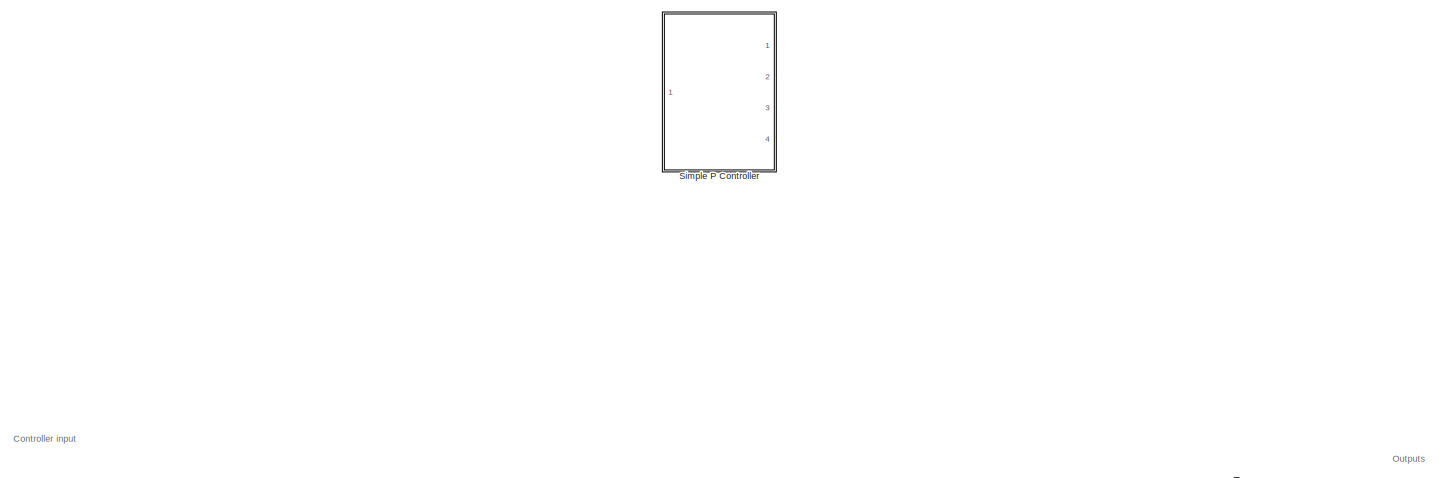
[diagram: root canvas - part 1/4, full width, top band]
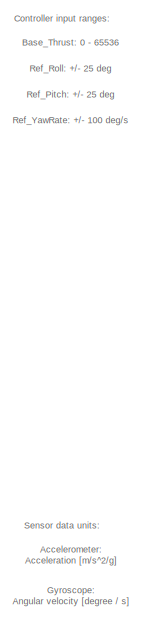
[diagram: root canvas - part 2/4, middle left region]
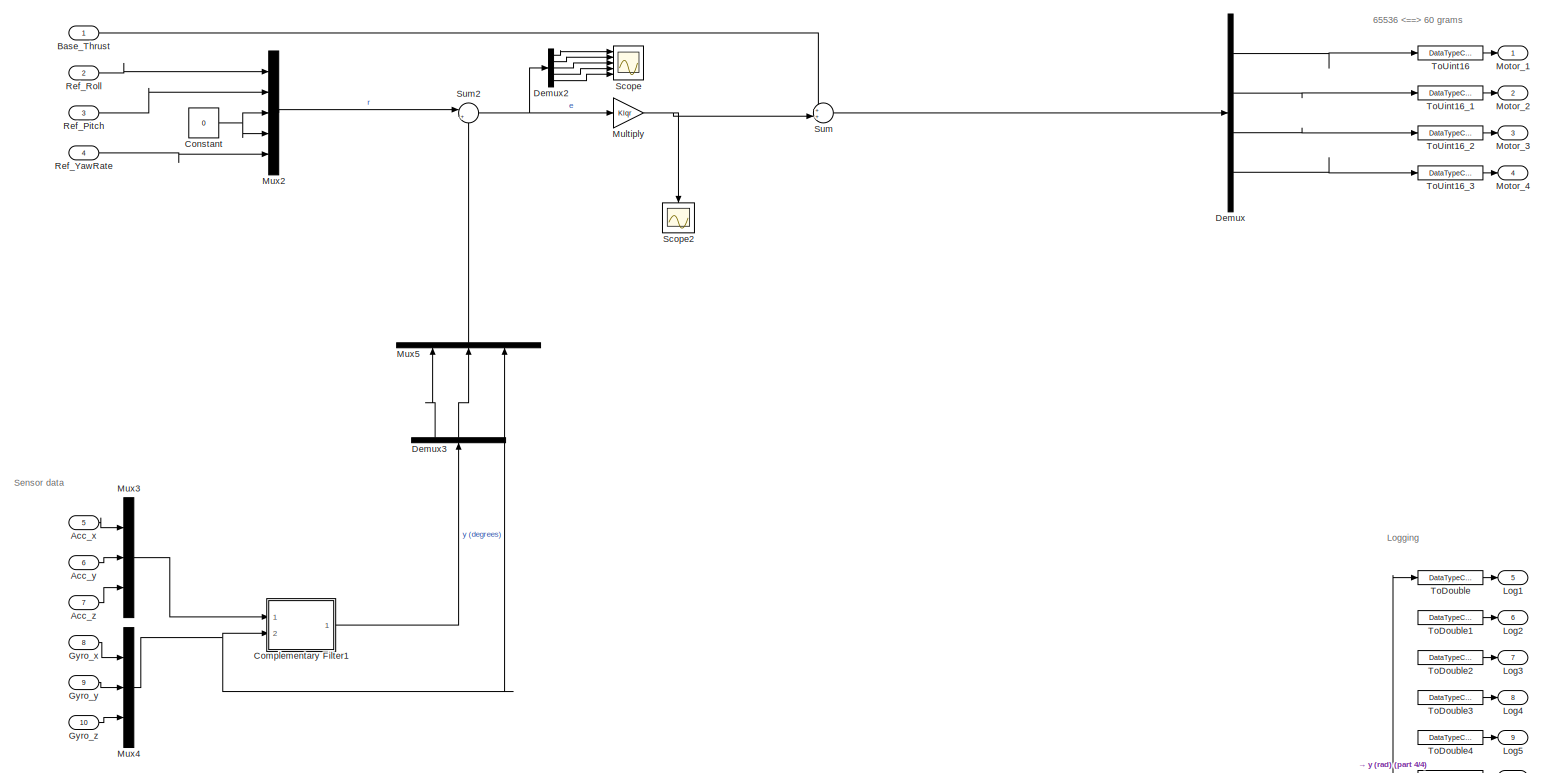
[diagram: root canvas - part 3/4, full width, middle band]
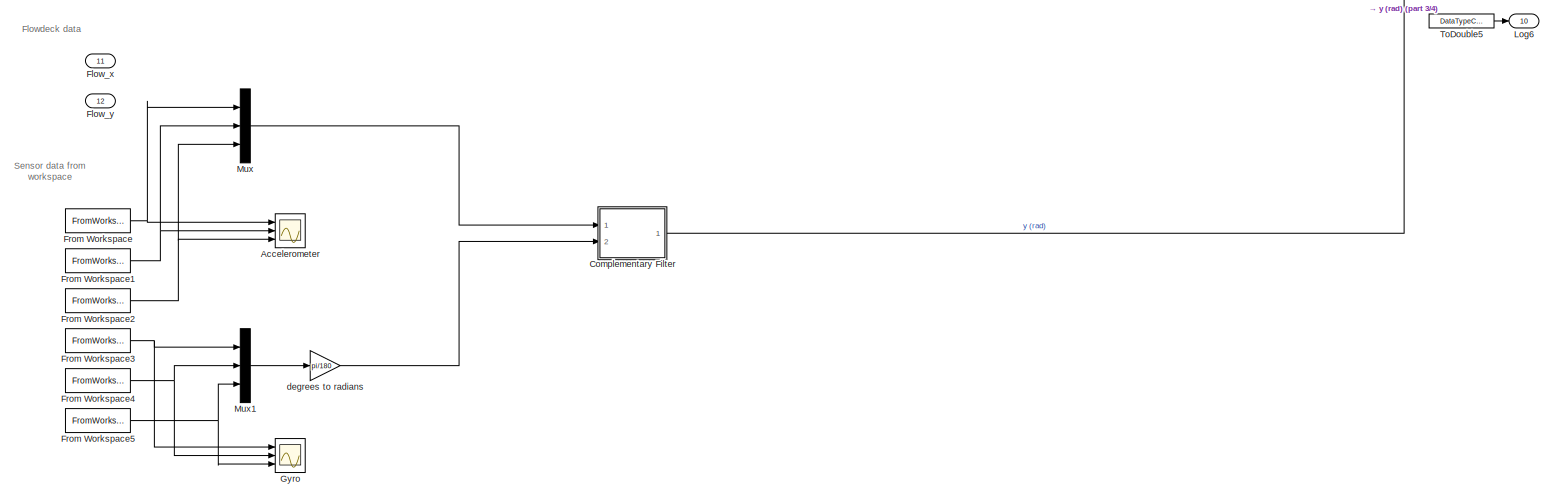
[diagram: root canvas - part 4/4, full width, bottom band]
MODEL slx_185df09b1d9f
KIND model
CONFIG AbsTol = auto
CONFIG EnableMultiTasking = off
CONFIG FixedStep = 0.01
CONFIG MaxStep = auto
CONFIG MinStep = auto
CONFIG RelTol = 1e-3
CONFIG SampleTimeConstraint = Unconstrained
CONFIG Solver = FixedStepDiscrete
CONFIG SolverName = FixedStepDiscrete
CONFIG StartTime = 0.0
CONFIG StopTime = 25
BLOCK [Inport] Acc_x
  IconDisplay = Port number
  OutDataTypeStr = double
  Port = 5
  PortDimensions = 1
  SignalType = real
  VarSizeSig = No
BLOCK [Inport] Acc_y
  IconDisplay = Port number
  OutDataTypeStr = double
  Port = 6
  PortDimensions = 1
  SignalType = real
  VarSizeSig = No
BLOCK [Inport] Acc_z
  IconDisplay = Port number
  OutDataTypeStr = double
  Port = 7
  PortDimensions = 1
  SignalType = real
  VarSizeSig = No
BLOCK [Scope] Accelerometer
  Floating = off
  NumInputPorts = 3
  Ports = [3]
  ScopeSpecificationString = Simulink.scopes.TimeScopeBlockCfg('CurrentConfiguration', extmgr.ConfigurationSet(extmgr.Configuration('Core','General UI',true),extmgr.Configuration('Core','Source UI',true),extmgr.Configuration('Sources','WiredSimulink',true),extmgr.Configuration('Visuals','Time Domain',true,'SerializedDisplays',{struct('MinYLimReal','-0.89092','MaxYLimReal','0.49663','YLabelReal','','MinYLimMag','0.00000','MaxY...<+2755ch>
BLOCK [Inport] Base_Thrust
  IconDisplay = Port number
  OutDataTypeStr = double
  SignalType = real
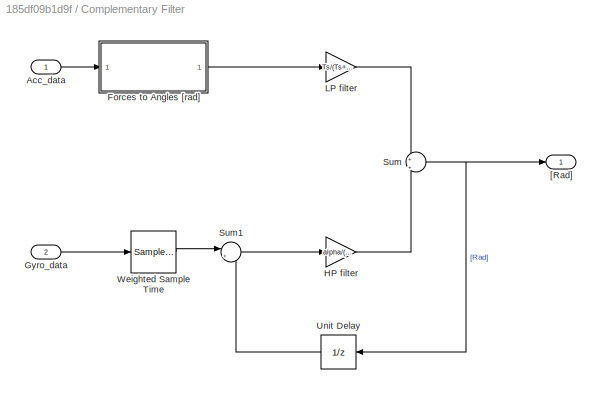
BLOCK [SubSystem] Complementary Filter
  Ports = [2, 1]
  RequestExecContextInheritance = off
BLOCK [Inport] Complementary Filter/Acc_data
  IconDisplay = Port number
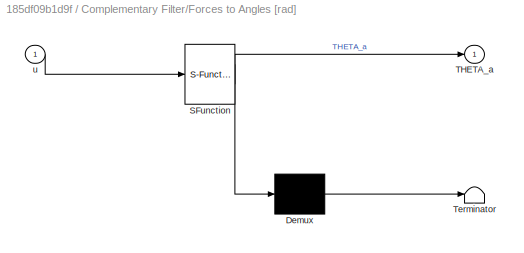
BLOCK [SubSystem] Complementary Filter/Forces to Angles [rad]
  ErrorFcn = Stateflow.Translate.translate
  PermitHierarchicalResolution = ExplicitOnly
  Ports = [1, 1]
  RequestExecContextInheritance = off
  SFBlockType = MATLAB Function
  TreatAsAtomicUnit = on
BLOCK [Demux] Complementary Filter/Forces to Angles [rad]/ Demux 
  Outputs = 1
  Ports = [1, 1]
BLOCK [S-Function] Complementary Filter/Forces to Angles [rad]/ SFunction 
  EnableBusSupport = on
  FunctionName = sf_sfun
  PortCounts = [1 2]
  Ports = [1, 2]
  SFcnIsStateOwnerBlock = off
  SFunctionDeploymentMode = off
  Tag = Stateflow S-Function 2
BLOCK [Terminator] Complementary Filter/Forces to Angles [rad]/ Terminator 
BLOCK [Outport] Complementary Filter/Forces to Angles [rad]/THETA_a
  IconDisplay = Port number
BLOCK [Inport] Complementary Filter/Forces to Angles [rad]/u
  IconDisplay = Port number
BLOCK [Inport] Complementary Filter/Gyro_data
  IconDisplay = Port number
  Port = 2
BLOCK [Gain] Complementary Filter/HP filter
  Gain = alpha/(Ts+alpha)
  OutDataTypeStr = Inherit: Inherit via internal rule
  ParamDataTypeStr = Inherit: Inherit via internal rule
  SaturateOnIntegerOverflow = off
BLOCK [Gain] Complementary Filter/LP filter
  Gain = Ts/(Ts+alpha)
  OutDataTypeStr = Inherit: Inherit via internal rule
  ParamDataTypeStr = Inherit: Inherit via internal rule
  SaturateOnIntegerOverflow = off
BLOCK [Sum] Complementary Filter/Sum
  IconShape = round
  InputSameDT = off
  Inputs = +|+
  OutDataTypeStr = Inherit: Inherit via internal rule
  Ports = [2, 1]
  SaturateOnIntegerOverflow = off
BLOCK [Sum] Complementary Filter/Sum1
  IconShape = round
  InputSameDT = off
  Inputs = |++
  OutDataTypeStr = Inherit: Inherit via internal rule
  Ports = [2, 1]
  SaturateOnIntegerOverflow = off
BLOCK [UnitDelay] Complementary Filter/Unit Delay
  HasFrameUpgradeWarning = on
  SampleTime = -1
BLOCK [SampleTimeMath] Complementary Filter/Weighted Sample Time
  TsampMathOp = Ts Only
BLOCK [Outport] Complementary Filter/[Rad]
  IconDisplay = Port number
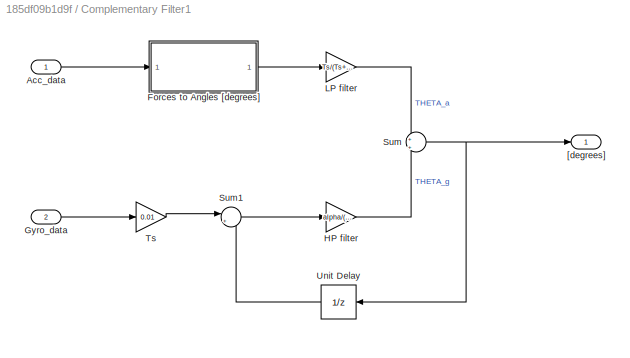
BLOCK [SubSystem] Complementary Filter1
  Ports = [2, 1]
  RequestExecContextInheritance = off
BLOCK [Inport] Complementary Filter1/Acc_data
  IconDisplay = Port number
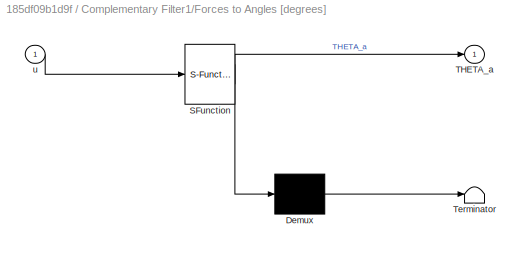
BLOCK [SubSystem] Complementary Filter1/Forces to Angles [degrees]
  ErrorFcn = Stateflow.Translate.translate
  PermitHierarchicalResolution = ExplicitOnly
  Ports = [1, 1]
  RequestExecContextInheritance = off
  SFBlockType = MATLAB Function
  TreatAsAtomicUnit = on
BLOCK [Demux] Complementary Filter1/Forces to Angles [degrees]/ Demux 
  Outputs = 1
  Ports = [1, 1]
BLOCK [S-Function] Complementary Filter1/Forces to Angles [degrees]/ SFunction 
  EnableBusSupport = on
  FunctionName = sf_sfun
  PortCounts = [1 2]
  Ports = [1, 2]
  SFcnIsStateOwnerBlock = off
  SFunctionDeploymentMode = off
  Tag = Stateflow S-Function 1
BLOCK [Terminator] Complementary Filter1/Forces to Angles [degrees]/ Terminator 
BLOCK [Outport] Complementary Filter1/Forces to Angles [degrees]/THETA_a
  IconDisplay = Port number
BLOCK [Inport] Complementary Filter1/Forces to Angles [degrees]/u
  IconDisplay = Port number
BLOCK [Inport] Complementary Filter1/Gyro_data
  IconDisplay = Port number
  Port = 2
BLOCK [Gain] Complementary Filter1/HP filter
  Gain = alpha/(Ts+alpha)
  OutDataTypeStr = Inherit: Inherit via internal rule
  ParamDataTypeStr = Inherit: Inherit via internal rule
  SaturateOnIntegerOverflow = off
BLOCK [Gain] Complementary Filter1/LP filter
  Gain = Ts/(Ts+alpha)
  OutDataTypeStr = Inherit: Inherit via internal rule
  ParamDataTypeStr = Inherit: Inherit via internal rule
  SaturateOnIntegerOverflow = off
BLOCK [Sum] Complementary Filter1/Sum
  IconShape = round
  InputSameDT = off
  Inputs = +|+
  OutDataTypeStr = Inherit: Inherit via internal rule
  Ports = [2, 1]
  SaturateOnIntegerOverflow = off
BLOCK [Sum] Complementary Filter1/Sum1
  IconShape = round
  InputSameDT = off
  Inputs = |++
  OutDataTypeStr = Inherit: Inherit via internal rule
  Ports = [2, 1]
  SaturateOnIntegerOverflow = off
BLOCK [Gain] Complementary Filter1/Ts
  Gain = 0.01
  OutDataTypeStr = Inherit: Inherit via internal rule
  ParamDataTypeStr = Inherit: Inherit via internal rule
  SaturateOnIntegerOverflow = off
BLOCK [UnitDelay] Complementary Filter1/Unit Delay
  HasFrameUpgradeWarning = on
  SampleTime = -1
BLOCK [Outport] Complementary Filter1/[degrees]
  IconDisplay = Port number
BLOCK [Constant] Constant
  Value = 0
BLOCK [Demux] Demux
  DisplayOption = bar
  Ports = [1, 4]
BLOCK [Demux] Demux2
  DisplayOption = bar
  Outputs = 5
  Ports = [1, 5]
BLOCK [Demux] Demux3
  DisplayOption = bar
  Outputs = 3
  Ports = [1, 3]
BLOCK [Inport] Flow_x
  IconDisplay = Port number
  OutDataTypeStr = int16
  Port = 11
  PortDimensions = 1
  SignalType = real
  VarSizeSig = No
BLOCK [Inport] Flow_y
  IconDisplay = Port number
  OutDataTypeStr = int16
  Port = 12
  PortDimensions = 1
  SignalType = real
  VarSizeSig = No
BLOCK [FromWorkspace] From Workspace
  OutDataTypeStr = double
  SampleTime = 0
  VariableName = Acc_x
  ZeroCross = on
BLOCK [FromWorkspace] From Workspace1
  OutDataTypeStr = double
  SampleTime = 0
  VariableName = Acc_y
  ZeroCross = on
BLOCK [FromWorkspace] From Workspace2
  OutDataTypeStr = double
  SampleTime = 0
  VariableName = Acc_z
  ZeroCross = on
BLOCK [FromWorkspace] From Workspace3
  OutDataTypeStr = double
  SampleTime = 0
  VariableName = Gyro_x
  ZeroCross = on
BLOCK [FromWorkspace] From Workspace4
  OutDataTypeStr = double
  SampleTime = 0
  VariableName = Gyro_y
  ZeroCross = on
BLOCK [FromWorkspace] From Workspace5
  OutDataTypeStr = double
  SampleTime = 0
  VariableName = Gyro_z
  ZeroCross = on
BLOCK [Scope] Gyro
  Floating = off
  NumInputPorts = 3
  Ports = [3]
  ScopeSpecificationString = Simulink.scopes.TimeScopeBlockCfg('CurrentConfiguration', extmgr.ConfigurationSet(extmgr.Configuration('Core','General UI',true),extmgr.Configuration('Core','Source UI',true),extmgr.Configuration('Sources','WiredSimulink',true,'DataLoggingVariableName','ScopeData1'),extmgr.Configuration('Visuals','Time Domain',true,'SerializedDisplays',{struct('MinYLimReal','-104.031','MaxYLimReal','146.94762','YL...<+2808ch>
BLOCK [Inport] Gyro_x
  IconDisplay = Port number
  OutDataTypeStr = double
  Port = 8
  PortDimensions = 1
  SignalType = real
  VarSizeSig = No
BLOCK [Inport] Gyro_y
  IconDisplay = Port number
  OutDataTypeStr = double
  Port = 9
  PortDimensions = 1
  SignalType = real
  VarSizeSig = No
BLOCK [Inport] Gyro_z
  IconDisplay = Port number
  OutDataTypeStr = double
  Port = 10
  PortDimensions = 1
  SignalType = real
  VarSizeSig = No
BLOCK [Outport] Log1
  IconDisplay = Port number
  OutDataTypeStr = double
  Port = 5
  VectorParamsAs1DForOutWhenUnconnected = off
BLOCK [Outport] Log2
  IconDisplay = Port number
  OutDataTypeStr = double
  Port = 6
  VectorParamsAs1DForOutWhenUnconnected = off
BLOCK [Outport] Log3
  IconDisplay = Port number
  OutDataTypeStr = double
  Port = 7
  VectorParamsAs1DForOutWhenUnconnected = off
BLOCK [Outport] Log4
  IconDisplay = Port number
  OutDataTypeStr = double
  Port = 8
  VectorParamsAs1DForOutWhenUnconnected = off
BLOCK [Outport] Log5
  IconDisplay = Port number
  OutDataTypeStr = double
  Port = 9
  VectorParamsAs1DForOutWhenUnconnected = off
BLOCK [Outport] Log6
  IconDisplay = Port number
  OutDataTypeStr = double
  Port = 10
  VectorParamsAs1DForOutWhenUnconnected = off
BLOCK [Outport] Motor_1
  IconDisplay = Port number
  LockScale = on
  OutDataTypeStr = uint16
  VectorParamsAs1DForOutWhenUnconnected = off
BLOCK [Outport] Motor_2
  IconDisplay = Port number
  LockScale = on
  OutDataTypeStr = uint16
  Port = 2
  VectorParamsAs1DForOutWhenUnconnected = off
BLOCK [Outport] Motor_3
  IconDisplay = Port number
  LockScale = on
  OutDataTypeStr = uint16
  Port = 3
  VectorParamsAs1DForOutWhenUnconnected = off
BLOCK [Outport] Motor_4
  IconDisplay = Port number
  LockScale = on
  OutDataTypeStr = uint16
  Port = 4
  VectorParamsAs1DForOutWhenUnconnected = off
BLOCK [Gain] Multiply
  Gain = Klqr
  Multiplication = Matrix(K*u)
  OutDataTypeStr = Inherit: Inherit via internal rule
  ParamDataTypeStr = Inherit: Inherit via internal rule
  SaturateOnIntegerOverflow = off
BLOCK [Mux] Mux
  DisplayOption = bar
  Inputs = 3
  Ports = [3, 1]
BLOCK [Mux] Mux1
  DisplayOption = bar
  Inputs = 3
  Ports = [3, 1]
BLOCK [Mux] Mux2
  DisplayOption = bar
  Inputs = 5
  Ports = [5, 1]
BLOCK [Mux] Mux3
  DisplayOption = bar
  Inputs = 3
  Ports = [3, 1]
BLOCK [Mux] Mux4
  DisplayOption = bar
  Inputs = 3
  Ports = [3, 1]
BLOCK [Mux] Mux5
  DisplayOption = bar
  Inputs = 3
  Ports = [3, 1]
BLOCK [Inport] Ref_Pitch
  IconDisplay = Port number
  OutDataTypeStr = double
  Port = 3
BLOCK [Inport] Ref_Roll
  IconDisplay = Port number
  OutDataTypeStr = double
  Port = 2
BLOCK [Inport] Ref_YawRate
  IconDisplay = Port number
  OutDataTypeStr = double
  Port = 4
BLOCK [Scope] Scope
  Floating = off
  NumInputPorts = 5
  Ports = [5]
  ScopeSpecificationString = Simulink.scopes.TimeScopeBlockCfg('CurrentConfiguration', extmgr.ConfigurationSet(extmgr.Configuration('Core','General UI',true),extmgr.Configuration('Core','Source UI',true),extmgr.Configuration('Sources','WiredSimulink',true,'DataLoggingVariableName','ScopeData1'),extmgr.Configuration('Visuals','Time Domain',true,'SerializedDisplays',{struct('MinYLimReal','-6.03699','MaxYLimReal','8.37345','YLab...<+3534ch>
BLOCK [Scope] Scope2
  Floating = off
  NumInputPorts = 1
  Ports = [1]
  ScopeSpecificationString = Simulink.scopes.TimeScopeBlockCfg('CurrentConfiguration', extmgr.ConfigurationSet(extmgr.Configuration('Core','General UI',true),extmgr.Configuration('Core','Source UI',true),extmgr.Configuration('Sources','WiredSimulink',true,'DataLoggingVariableName','ScopeData3'),extmgr.Configuration('Visuals','Time Domain',true,'SerializedDisplays',{struct('MinYLimReal','-6.8098','MaxYLimReal','6.8098','YLabel...<+1456ch>
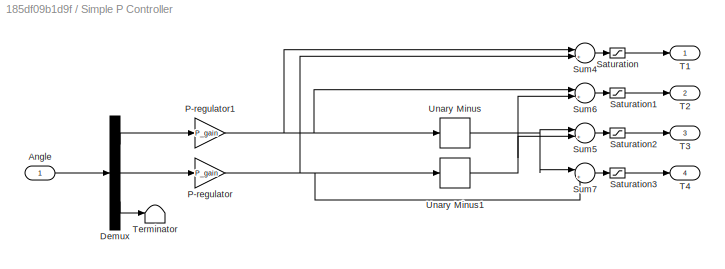
BLOCK [SubSystem] Simple P Controller
  Commented = on
  Ports = [1, 4]
  RequestExecContextInheritance = off
BLOCK [Inport] Simple P Controller/Angle
  IconDisplay = Port number
BLOCK [Demux] Simple P Controller/Demux
  DisplayOption = bar
  Outputs = 3
  Ports = [1, 3]
BLOCK [Gain] Simple P Controller/P-regulator
  Gain = P_gain
  OutDataTypeStr = Inherit: Inherit via internal rule
  ParamDataTypeStr = Inherit: Inherit via internal rule
  SaturateOnIntegerOverflow = off
BLOCK [Gain] Simple P Controller/P-regulator1
  Gain = P_gain
  OutDataTypeStr = Inherit: Inherit via internal rule
  ParamDataTypeStr = Inherit: Inherit via internal rule
  SaturateOnIntegerOverflow = off
BLOCK [Saturate] Simple P Controller/Saturation
  InputPortMap = u0
  LowerLimit = -inf
  Ports = [1, 1]
  UpperLimit = 65536
BLOCK [Saturate] Simple P Controller/Saturation1
  InputPortMap = u0
  LowerLimit = -inf
  Ports = [1, 1]
  UpperLimit = 65536
BLOCK [Saturate] Simple P Controller/Saturation2
  InputPortMap = u0
  LowerLimit = -inf
  Ports = [1, 1]
  UpperLimit = 65536
BLOCK [Saturate] Simple P Controller/Saturation3
  InputPortMap = u0
  LowerLimit = -inf
  Ports = [1, 1]
  UpperLimit = 65536
BLOCK [Sum] Simple P Controller/Sum4
  IconShape = round
  InputSameDT = off
  Inputs = |++
  OutDataTypeStr = Inherit: Inherit via internal rule
  Ports = [2, 1]
  SaturateOnIntegerOverflow = off
BLOCK [Sum] Simple P Controller/Sum5
  IconShape = round
  InputSameDT = off
  Inputs = |++
  OutDataTypeStr = Inherit: Inherit via internal rule
  Ports = [2, 1]
  SaturateOnIntegerOverflow = off
BLOCK [Sum] Simple P Controller/Sum6
  IconShape = round
  InputSameDT = off
  Inputs = |++
  OutDataTypeStr = Inherit: Inherit via internal rule
  Ports = [2, 1]
  SaturateOnIntegerOverflow = off
BLOCK [Sum] Simple P Controller/Sum7
  IconShape = round
  InputSameDT = off
  Inputs = |++
  OutDataTypeStr = Inherit: Inherit via internal rule
  Ports = [2, 1]
  SaturateOnIntegerOverflow = off
BLOCK [Outport] Simple P Controller/T1
  IconDisplay = Port number
BLOCK [Outport] Simple P Controller/T2
  IconDisplay = Port number
  Port = 2
BLOCK [Outport] Simple P Controller/T3
  IconDisplay = Port number
  Port = 3
BLOCK [Outport] Simple P Controller/T4
  IconDisplay = Port number
  Port = 4
BLOCK [Terminator] Simple P Controller/Terminator
BLOCK [UnaryMinus] Simple P Controller/Unary Minus
BLOCK [UnaryMinus] Simple P Controller/Unary Minus1
BLOCK [Sum] Sum
  IconShape = round
  InputSameDT = off
  Inputs = ++|
  OutDataTypeStr = Inherit: Inherit via internal rule
  Ports = [2, 1]
  SaturateOnIntegerOverflow = off
BLOCK [Sum] Sum2
  IconShape = round
  InputSameDT = off
  Inputs = |+-
  OutDataTypeStr = Inherit: Inherit via internal rule
  Ports = [2, 1]
  SaturateOnIntegerOverflow = off
BLOCK [DataTypeConversion] ToDouble
  OutDataTypeStr = double
  RndMeth = Floor
BLOCK [DataTypeConversion] ToDouble1
  OutDataTypeStr = double
  RndMeth = Floor
BLOCK [DataTypeConversion] ToDouble2
  OutDataTypeStr = double
  RndMeth = Floor
BLOCK [DataTypeConversion] ToDouble3
  OutDataTypeStr = double
  RndMeth = Floor
BLOCK [DataTypeConversion] ToDouble4
  OutDataTypeStr = double
  RndMeth = Floor
BLOCK [DataTypeConversion] ToDouble5
  OutDataTypeStr = double
  RndMeth = Floor
BLOCK [DataTypeConversion] ToUint16
  OutDataTypeStr = uint16
  RndMeth = Floor
BLOCK [DataTypeConversion] ToUint16_1
  OutDataTypeStr = uint16
  RndMeth = Floor
BLOCK [DataTypeConversion] ToUint16_2
  OutDataTypeStr = uint16
  RndMeth = Floor
BLOCK [DataTypeConversion] ToUint16_3
  OutDataTypeStr = uint16
  RndMeth = Floor
BLOCK [Gain] degrees to radians
  Gain = pi/180
  OutDataTypeStr = Inherit: Inherit via internal rule
  ParamDataTypeStr = Inherit: Inherit via internal rule
  SaturateOnIntegerOverflow = off
ANNOTATION (root): 65536 60 grams
ANNOTATION (root): Accelerometer: Acceleration [m/s^2/g]
ANNOTATION (root): Base_Thrust: 0 - 65536
ANNOTATION (root): Controller input
ANNOTATION (root): Controller input ranges:
ANNOTATION (root): Flowdeck data
ANNOTATION (root): Gyroscope: Angular velocity [degree / s]
ANNOTATION (root): Logging
ANNOTATION (root): Outputs
ANNOTATION (root): Ref_Pitch: +/- 25 deg
ANNOTATION (root): Ref_Roll: +/- 25 deg
ANNOTATION (root): Ref_YawRate: +/- 100 deg/s
ANNOTATION (root): Sensor data
ANNOTATION (root): Sensor data from workspace
ANNOTATION (root): Sensor data units:
LINE Acc_x:1 -> Mux3:1
LINE Acc_y:1 -> Mux3:2
LINE Acc_z:1 -> Mux3:3
LINE Base_Thrust:1 -> Sum:1
LINE Complementary Filter/Acc_data:1 -> Complementary Filter/Forces to Angles [rad]:1
LINE Complementary Filter/Forces to Angles [rad]:1 -> Complementary Filter/LP filter:1
LINE Complementary Filter/Gyro_data:1 -> Complementary Filter/Weighted Sample Time:1
LINE Complementary Filter/HP filter:1 -> Complementary Filter/Sum:2
LINE Complementary Filter/LP filter:1 -> Complementary Filter/Sum:1
LINE Complementary Filter/Sum1:1 -> Complementary Filter/HP filter:1
NET Complementary Filter/Sum:1 -> Complementary Filter/Unit Delay:1, Complementary Filter/[Rad]:1
LINE Complementary Filter/Unit Delay:1 -> Complementary Filter/Sum1:2
LINE Complementary Filter/Weighted Sample Time:1 -> Complementary Filter/Sum1:1
LINE Complementary Filter1/Acc_data:1 -> Complementary Filter1/Forces to Angles [degrees]:1
LINE Complementary Filter1/Forces to Angles [degrees]:1 -> Complementary Filter1/LP filter:1
LINE Complementary Filter1/Gyro_data:1 -> Complementary Filter1/Ts:1
LINE Complementary Filter1/HP filter:1 -> Complementary Filter1/Sum:2
LINE Complementary Filter1/LP filter:1 -> Complementary Filter1/Sum:1
LINE Complementary Filter1/Sum1:1 -> Complementary Filter1/HP filter:1
NET Complementary Filter1/Sum:1 -> Complementary Filter1/Unit Delay:1, Complementary Filter1/[degrees]:1
LINE Complementary Filter1/Ts:1 -> Complementary Filter1/Sum1:1
LINE Complementary Filter1/Unit Delay:1 -> Complementary Filter1/Sum1:2
LINE Complementary Filter1:1 -> Demux3:1
LINE Complementary Filter:1 -> ToDouble:1
NET Constant:1 -> Mux2:3, Mux2:4
LINE Demux2:1 -> Scope:1
LINE Demux2:2 -> Scope:2
LINE Demux2:3 -> Scope:3
LINE Demux2:4 -> Scope:4
LINE Demux2:5 -> Scope:5
LINE Demux3:1 -> Mux5:1
LINE Demux3:2 -> Mux5:2
LINE Demux:1 -> ToUint16:1
LINE Demux:2 -> ToUint16_1:1
LINE Demux:3 -> ToUint16_2:1
LINE Demux:4 -> ToUint16_3:1
NET From Workspace1:1 -> Accelerometer:2, Mux:2
NET From Workspace2:1 -> Accelerometer:3, Mux:3
NET From Workspace3:1 -> Gyro:1, Mux1:1
NET From Workspace4:1 -> Gyro:2, Mux1:2
NET From Workspace5:1 -> Gyro:3, Mux1:3
NET From Workspace:1 -> Accelerometer:1, Mux:1
LINE Gyro_x:1 -> Mux4:1
LINE Gyro_y:1 -> Mux4:2
LINE Gyro_z:1 -> Mux4:3
NET Multiply:1 -> Scope2:1, Sum:2
LINE Mux1:1 -> degrees to radians:1
LINE Mux2:1 -> Sum2:1
LINE Mux3:1 -> Complementary Filter1:1
NET Mux4:1 -> Complementary Filter1:2, Mux5:3
LINE Mux5:1 -> Sum2:2
LINE Mux:1 -> Complementary Filter:1
LINE Ref_Pitch:1 -> Mux2:2
LINE Ref_Roll:1 -> Mux2:1
LINE Ref_YawRate:1 -> Mux2:5
LINE Simple P Controller/Angle:1 -> Simple P Controller/Demux:1
LINE Simple P Controller/Demux:1 -> Simple P Controller/P-regulator1:1
LINE Simple P Controller/Demux:2 -> Simple P Controller/P-regulator:1
LINE Simple P Controller/Demux:3 -> Simple P Controller/Terminator:1
NET Simple P Controller/P-regulator1:1 -> Simple P Controller/Sum4:1, Simple P Controller/Sum6:1, Simple P Controller/Unary Minus:1
NET Simple P Controller/P-regulator:1 -> Simple P Controller/Sum4:2, Simple P Controller/Sum7:2, Simple P Controller/Unary Minus1:1
LINE Simple P Controller/Saturation1:1 -> Simple P Controller/T2:1
LINE Simple P Controller/Saturation2:1 -> Simple P Controller/T3:1
LINE Simple P Controller/Saturation3:1 -> Simple P Controller/T4:1
LINE Simple P Controller/Saturation:1 -> Simple P Controller/T1:1
LINE Simple P Controller/Sum4:1 -> Simple P Controller/Saturation:1
LINE Simple P Controller/Sum5:1 -> Simple P Controller/Saturation2:1
LINE Simple P Controller/Sum6:1 -> Simple P Controller/Saturation1:1
LINE Simple P Controller/Sum7:1 -> Simple P Controller/Saturation3:1
NET Simple P Controller/Unary Minus1:1 -> Simple P Controller/Sum5:2, Simple P Controller/Sum6:2
NET Simple P Controller/Unary Minus:1 -> Simple P Controller/Sum5:1, Simple P Controller/Sum7:1
NET Sum2:1 -> Demux2:1, Multiply:1
LINE Sum:1 -> Demux:1
LINE ToDouble1:1 -> Log2:1
LINE ToDouble2:1 -> Log3:1
LINE ToDouble3:1 -> Log4:1
LINE ToDouble4:1 -> Log5:1
LINE ToDouble5:1 -> Log6:1
LINE ToDouble:1 -> Log1:1
LINE ToUint16:1 -> Motor_1:1
LINE ToUint16_1:1 -> Motor_2:1
LINE ToUint16_2:1 -> Motor_3:1
LINE ToUint16_3:1 -> Motor_4:1
LINE degrees to radians:1 -> Complementary Filter:2
note: NET lines group one-source signal fan-out (src -> all destinations, sorted); 1:1 wires keep LINE
CHART Complementary Filter1/Forces to Angles [degrees] states=1 transitions=1
  STATE_LABEL 'eML_blk_kernel()'
  STATE_LABEL 'SCRIPT:\nfunction THETA_a = fcn(u)\n% u is a 3x1 where u(1) = fbx, u(2) = fby, u(3) = fbz\n\nfbx = u(1);\nfby = u(2);\nfbz = u(3);\n\nphi_a = atan2(fby,fbz);\ntheta_a = atan2(-fbx,sqrt((fby)^2+(fbz)^2));\n\nTHETA_a = [phi_a; theta_a; 0]*180/pi; % angles\n% THETA_a = [phi_a; theta_a; 0];          % radians'
CHART Complementary Filter/Forces to Angles [rad] states=1 transitions=1
  STATE_LABEL 'eML_blk_kernel()'
  STATE_LABEL 'SCRIPT:\nfunction THETA_a = fcn(u)\n% u is a 3x1 where u(1) = fbx, u(2) = fby, u(3) = fbz\n\nfbx = u(1);\nfby = u(2);\nfbz = u(3);\n\nphi_a = atan2(fby,fbz);\ntheta_a = atan2(-fbx,sqrt((fby)^2+(fbz)^2));\n\nTHETA_a = [phi_a; theta_a; 0];'
